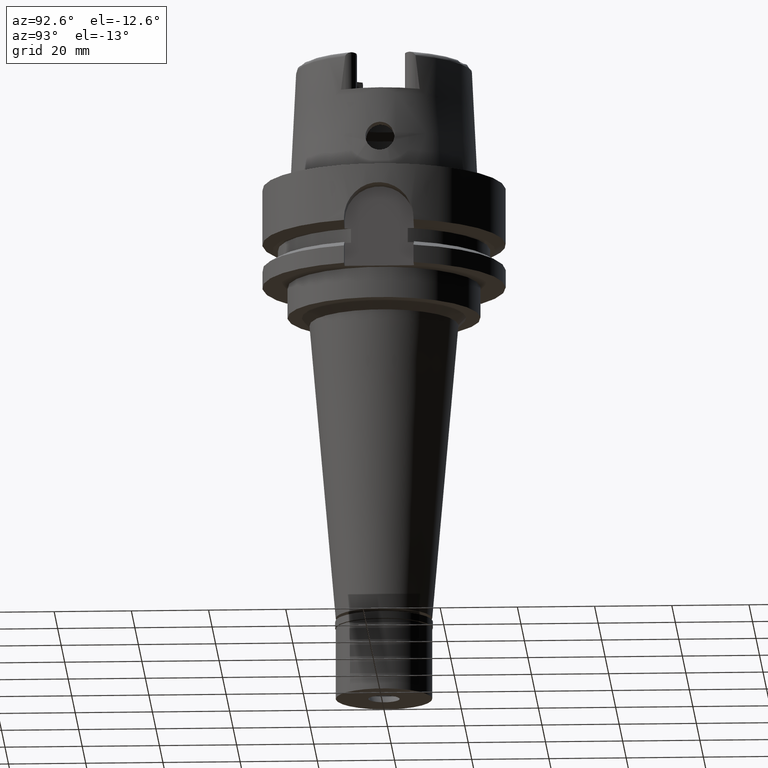
[diagram: clean part render]
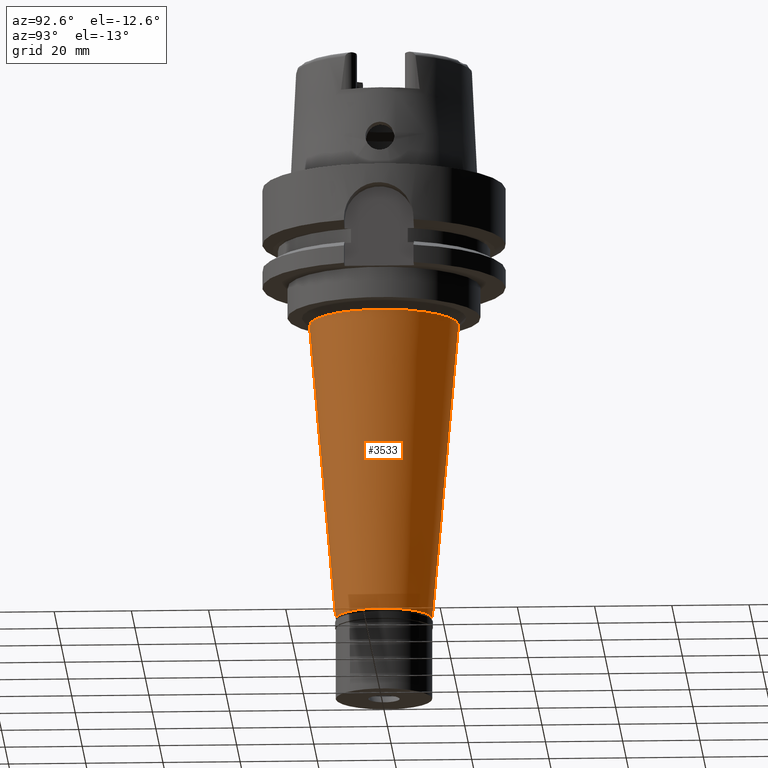
[diagram: same view with one face highlighted and labeled with its STEP entity id]
A machine part, auxiliary view. The second image highlights one B-rep face of the part: STEP entity #3533.
In plain terms, the highlighted conical surface has half-angle 5 deg.
Its self-contained STEP definition (entity closure, byte-faithful):
#20 = FACE_OUTER_BOUND ( 'NONE', #1798, .T. ) ;
#41 = VERTEX_POINT ( 'NONE', #622 ) ;
#46 = CIRCLE ( 'NONE', #3323, 12.50000000000000000 ) ;
#290 = EDGE_CURVE ( 'NONE', #849, #3224, #2918, .T. ) ;
#355 = CARTESIAN_POINT ( 'NONE',  ( 0.0000000000000000000, 0.0000000000000000000, -74.84999999999999432 ) ) ;
#376 = AXIS2_PLACEMENT_3D ( 'NONE', #2622, #2643, #2235 ) ;
#622 = CARTESIAN_POINT ( 'NONE',  ( 0.0000000000000000000, 19.29786915596000085, -36.00000000000000000 ) ) ;
#755 = VERTEX_POINT ( 'NONE', #2823 ) ;
#849 = VERTEX_POINT ( 'NONE', #4640 ) ;
#913 = AXIS2_PLACEMENT_3D ( 'NONE', #355, #3344, #1240 ) ;
#1097 = ORIENTED_EDGE ( 'NONE', *, *, #4638, .F. ) ;
#1211 = EDGE_CURVE ( 'NONE', #41, #755, #3724, .T. ) ;
#1240 = DIRECTION ( 'NONE',  ( 0.0000000000000000000, 1.000000000000000000, 0.0000000000000000000 ) ) ;
#1534 = EDGE_CURVE ( 'NONE', #3224, #755, #46, .T. ) ;
#1798 = EDGE_LOOP ( 'NONE', ( #1097, #2818, #2060, #2460 ) ) ;
#1901 = VECTOR ( 'NONE', #3223, 1000.000000000000114 ) ;
#1984 = DIRECTION ( 'NONE',  ( 0.0000000000000000000, 0.0000000000000000000, 1.000000000000000000 ) ) ;
#2060 = ORIENTED_EDGE ( 'NONE', *, *, #1534, .T. ) ;
#2235 = DIRECTION ( 'NONE',  ( 0.0000000000000000000, -1.000000000000000000, 0.0000000000000000000 ) ) ;
#2340 = CARTESIAN_POINT ( 'NONE',  ( 0.0000000000000000000, 0.0000000000000000000, -113.6999999999999886 ) ) ;
#2415 = VECTOR ( 'NONE', #4601, 1000.000000000000114 ) ;
#2459 = CARTESIAN_POINT ( 'NONE',  ( 0.0000000000000000000, 19.29786915596000085, -36.00000000000000000 ) ) ;
#2460 = ORIENTED_EDGE ( 'NONE', *, *, #1211, .F. ) ;
#2581 = CIRCLE ( 'NONE', #376, 19.29786915596000085 ) ;
#2622 = CARTESIAN_POINT ( 'NONE',  ( 0.0000000000000000000, 0.0000000000000000000, -36.00000000000000000 ) ) ;
#2643 = DIRECTION ( 'NONE',  ( 0.0000000000000000000, 0.0000000000000000000, 1.000000000000000000 ) ) ;
#2818 = ORIENTED_EDGE ( 'NONE', *, *, #290, .T. ) ;
#2823 = CARTESIAN_POINT ( 'NONE',  ( 0.0000000000000000000, 12.50000000000000000, -113.6999999999999886 ) ) ;
#2918 = LINE ( 'NONE', #5066, #2415 ) ;
#3223 = DIRECTION ( 'NONE',  ( 0.0000000000000000000, -0.08715574274764407992, -0.9961946980917467664 ) ) ;
#3224 = VERTEX_POINT ( 'NONE', #3600 ) ;
#3323 = AXIS2_PLACEMENT_3D ( 'NONE', #2340, #1984, #4842 ) ;
#3344 = DIRECTION ( 'NONE',  ( 0.0000000000000000000, 0.0000000000000000000, 1.000000000000000000 ) ) ;
#3533 = ADVANCED_FACE ( 'NONE', ( #20 ), #4768, .T. ) ;
#3600 = CARTESIAN_POINT ( 'NONE',  ( 0.0000000000000000000, -12.50000000000000000, -113.6999999999999886 ) ) ;
#3724 = LINE ( 'NONE', #2459, #1901 ) ;
#4601 = DIRECTION ( 'NONE',  ( 0.0000000000000000000, 0.08715574274764407992, -0.9961946980917467664 ) ) ;
#4638 = EDGE_CURVE ( 'NONE', #849, #41, #2581, .T. ) ;
#4640 = CARTESIAN_POINT ( 'NONE',  ( 0.0000000000000000000, -19.29786915596000085, -36.00000000000000000 ) ) ;
#4768 = CONICAL_SURFACE ( 'NONE', #913, 15.89893457797999687, 0.08726646259969973729 ) ;
#4842 = DIRECTION ( 'NONE',  ( 0.0000000000000000000, -1.000000000000000000, 0.0000000000000000000 ) ) ;
#5066 = CARTESIAN_POINT ( 'NONE',  ( 0.0000000000000000000, -19.29786915596000085, -36.00000000000000000 ) ) ;